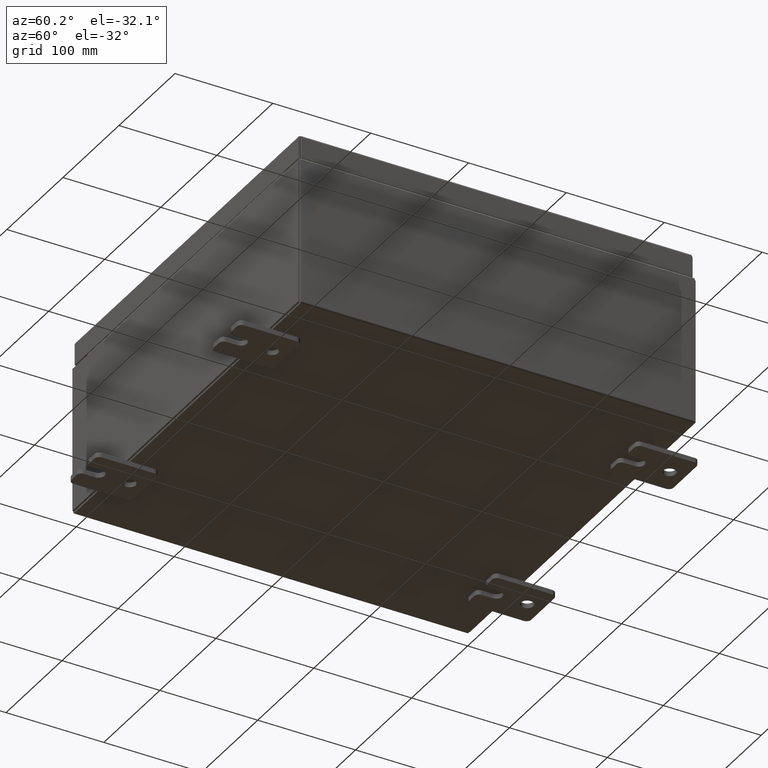
[diagram: clean part render]
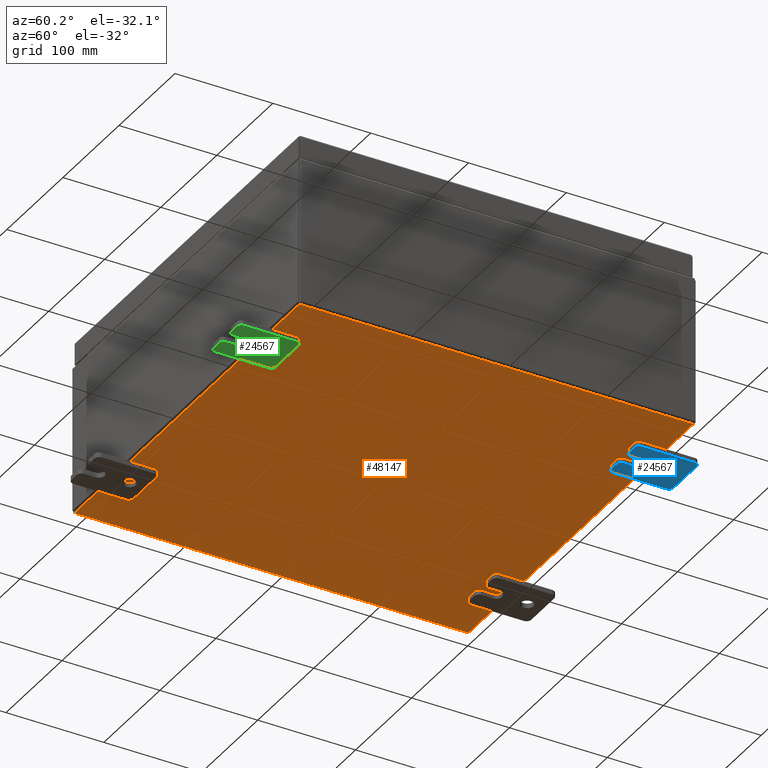
[diagram: same view with three faces highlighted in distinct colors, each labeled with its STEP entity id]
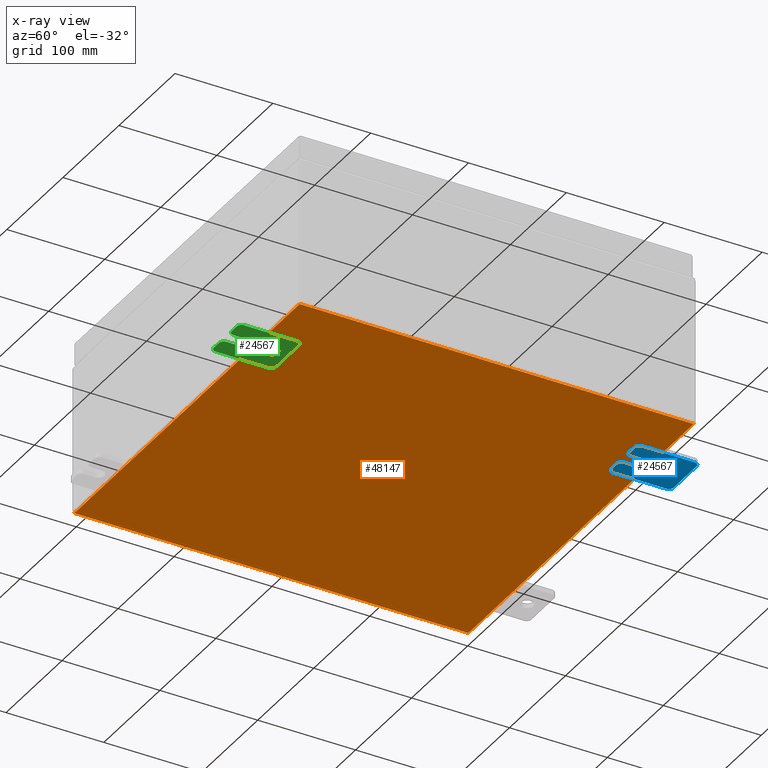
[diagram: x-ray of the same camera — body ghosted, the three highlighted faces saturated]
A machine part, auxiliary view with three faces highlighted in distinct colors.
The next image is the same camera in x-ray (body ghosted, the three faces saturated) — at least one of them is partly hidden behind the body in this view.
Their STEP definitions:

[orange] entity #48147 — the highlighted planar face has unit normal (0, 0, -1).
#1262 = CARTESIAN_POINT ( 'NONE',  ( -7.912300000000001000, -7.925300000000000900, -0.07469999999999994700 ) ) ;
#2845 = CARTESIAN_POINT ( 'NONE',  ( 7.912299999999998300, 7.925300000000000000, -0.07469999999999994700 ) ) ;
#3089 = PLANE ( 'NONE',  #54671 ) ;
#3186 = LINE ( 'NONE', #1262, #14315 ) ;
#5023 = CARTESIAN_POINT ( 'NONE',  ( -8.000000000000001800, -7.925300000000000900, -0.07470000000000000300 ) ) ;
#7933 = CARTESIAN_POINT ( 'NONE',  ( -7.912300000000001000, 7.925299999999998200, -0.07470000000000000300 ) ) ;
#13762 = ORIENTED_EDGE ( 'NONE', *, *, #33505, .T. ) ;
#14315 = VECTOR ( 'NONE', #58367, 39.37007874015748100 ) ;
#14983 = EDGE_CURVE ( 'NONE', #59762, #51099, #43965, .T. ) ;
#17233 = VERTEX_POINT ( 'NONE', #7933 ) ;
#17857 = CARTESIAN_POINT ( 'NONE',  ( 0.0000000000000000000, 0.0000000000000000000, -0.07470000000000000300 ) ) ;
#21466 = EDGE_LOOP ( 'NONE', ( #40939, #13762, #49142, #60429 ) ) ;
#22664 = DIRECTION ( 'NONE',  ( -1.000000000000000000, 0.0000000000000000000, -0.0000000000000000000 ) ) ;
#24903 = DIRECTION ( 'NONE',  ( -1.000000000000000000, -0.0000000000000000000, -0.0000000000000000000 ) ) ;
#26985 = CARTESIAN_POINT ( 'NONE',  ( 7.912299999999998300, 7.925300000000000000, -0.07469999999999994700 ) ) ;
#31209 = CARTESIAN_POINT ( 'NONE',  ( 7.912299999999998300, -7.925300000000000900, -0.07470000000000000300 ) ) ;
#32724 = VECTOR ( 'NONE', #38325, 39.37007874015748100 ) ;
#33016 = LINE ( 'NONE', #58267, #44216 ) ;
#33505 = EDGE_CURVE ( 'NONE', #42285, #17233, #3186, .T. ) ;
#38325 = DIRECTION ( 'NONE',  ( 1.000000000000000000, 0.0000000000000000000, 0.0000000000000000000 ) ) ;
#38512 = EDGE_CURVE ( 'NONE', #59762, #17233, #33016, .T. ) ;
#40924 = DIRECTION ( 'NONE',  ( -0.0000000000000000000, -1.000000000000000000, -0.0000000000000000000 ) ) ;
#40939 = ORIENTED_EDGE ( 'NONE', *, *, #43937, .F. ) ;
#41109 = FACE_OUTER_BOUND ( 'NONE', #21466, .T. ) ;
#42285 = VERTEX_POINT ( 'NONE', #59151 ) ;
#43937 = EDGE_CURVE ( 'NONE', #42285, #51099, #56646, .T. ) ;
#43965 = LINE ( 'NONE', #2845, #58168 ) ;
#44216 = VECTOR ( 'NONE', #24903, 39.37007874015748100 ) ;
#48147 = ADVANCED_FACE ( 'NONE', ( #41109 ), #3089, .T. ) ;
#49142 = ORIENTED_EDGE ( 'NONE', *, *, #38512, .F. ) ;
#51099 = VERTEX_POINT ( 'NONE', #31209 ) ;
#51181 = DIRECTION ( 'NONE',  ( 0.0000000000000000000, 0.0000000000000000000, -1.000000000000000000 ) ) ;
#54671 = AXIS2_PLACEMENT_3D ( 'NONE', #17857, #51181, #22664 ) ;
#56646 = LINE ( 'NONE', #5023, #32724 ) ;
#58168 = VECTOR ( 'NONE', #40924, 39.37007874015748100 ) ;
#58267 = CARTESIAN_POINT ( 'NONE',  ( -8.000000000000001800, 7.925299999999998200, -0.07470000000000000300 ) ) ;
#58367 = DIRECTION ( 'NONE',  ( -0.0000000000000000000, 1.000000000000000000, -0.0000000000000000000 ) ) ;
#59151 = CARTESIAN_POINT ( 'NONE',  ( -7.912300000000001000, -7.925300000000000900, -0.07469999999999994700 ) ) ;
#59762 = VERTEX_POINT ( 'NONE', #26985 ) ;
#60429 = ORIENTED_EDGE ( 'NONE', *, *, #14983, .T. ) ;

[blue] entity #24567 — the highlighted planar face has unit normal (0, 0, 1).
#671 = CARTESIAN_POINT ( 'NONE',  ( -0.1879999999999997800, -1.250000000000004700, -0.4400000000000002200 ) ) ;
#904 = EDGE_CURVE ( 'NONE', #1394, #14668, #11412, .T. ) ;
#1120 = CARTESIAN_POINT ( 'NONE',  ( -0.1879999999999997800, 1.059999999999993400, -1.000000000000010000 ) ) ;
#1394 = VERTEX_POINT ( 'NONE', #60674 ) ;
#1443 = VERTEX_POINT ( 'NONE', #8349 ) ;
#1460 = AXIS2_PLACEMENT_3D ( 'NONE', #52126, #23577, #56949 ) ;
#2194 = CARTESIAN_POINT ( 'NONE',  ( -0.1880000000000010000, 0.6249999999999992200, -7.703811342100550500E-020 ) ) ;
#2258 = EDGE_CURVE ( 'NONE', #4614, #37841, #14054, .T. ) ;
#2425 = DIRECTION ( 'NONE',  ( -1.000000000000000000, -0.0000000000000000000, 0.0000000000000000000 ) ) ;
#2502 = CARTESIAN_POINT ( 'NONE',  ( -0.1879999999999997800, -1.060000000000004500, -1.000000000000006400 ) ) ;
#2541 = VERTEX_POINT ( 'NONE', #21825 ) ;
#3601 = VERTEX_POINT ( 'NONE', #13780 ) ;
#4311 = PLANE ( 'NONE',  #8517 ) ;
#4614 = VERTEX_POINT ( 'NONE', #36760 ) ;
#4834 = ORIENTED_EDGE ( 'NONE', *, *, #14527, .T. ) ;
#4910 = VERTEX_POINT ( 'NONE', #43785 ) ;
#5939 = FACE_OUTER_BOUND ( 'NONE', #22501, .T. ) ;
#6155 = ORIENTED_EDGE ( 'NONE', *, *, #55666, .F. ) ;
#6272 = CIRCLE ( 'NONE', #14214, 0.2499999999999999200 ) ;
#6971 = DIRECTION ( 'NONE',  ( 0.0000000000000000000, 0.0000000000000000000, -1.000000000000000000 ) ) ;
#7249 = VERTEX_POINT ( 'NONE', #16137 ) ;
#7266 = EDGE_CURVE ( 'NONE', #7249, #37841, #30978, .T. ) ;
#7613 = CARTESIAN_POINT ( 'NONE',  ( -0.1879999999999997800, 1.249999999999994200, -1.000000000000010400 ) ) ;
#8106 = CARTESIAN_POINT ( 'NONE',  ( -0.1879999999999997800, -1.250000000000005600, -1.000000000000006200 ) ) ;
#8349 = CARTESIAN_POINT ( 'NONE',  ( -0.1880000000000001900, -0.6249999999999992200, -0.2499999999999998600 ) ) ;
#8517 = AXIS2_PLACEMENT_3D ( 'NONE', #42408, #13869, #47228 ) ;
#8899 = CIRCLE ( 'NONE', #1460, 0.1900000000000011100 ) ;
#8932 = FACE_BOUND ( 'NONE', #50460, .T. ) ;
#9102 = CARTESIAN_POINT ( 'NONE',  ( -0.1880000000000010000, 0.6249999999999992200, -7.703811342100550500E-020 ) ) ;
#10075 = VECTOR ( 'NONE', #23656, 39.37007874015748100 ) ;
#10155 = CARTESIAN_POINT ( 'NONE',  ( -0.1879999999999997800, -1.250000000000002200, 0.9999999999999992200 ) ) ;
#10243 = DIRECTION ( 'NONE',  ( -1.000000000000000000, 6.523827964459549700E-016, 5.163192708025532000E-017 ) ) ;
#11018 = AXIS2_PLACEMENT_3D ( 'NONE', #49264, #20726, #54080 ) ;
#11191 = CARTESIAN_POINT ( 'NONE',  ( -0.1880000000000001900, -0.6249999999999992200, -0.2499999999999993900 ) ) ;
#11412 = LINE ( 'NONE', #7613, #60684 ) ;
#11822 = ORIENTED_EDGE ( 'NONE', *, *, #47875, .F. ) ;
#13780 = CARTESIAN_POINT ( 'NONE',  ( -0.1880000000000001900, -0.6249999999999992200, 0.2500000000000005000 ) ) ;
#13869 = DIRECTION ( 'NONE',  ( 1.000000000000000000, 0.0000000000000000000, -0.0000000000000000000 ) ) ;
#13870 = DIRECTION ( 'NONE',  ( 0.0000000000000000000, 0.0000000000000000000, -1.000000000000000000 ) ) ;
#13934 = VECTOR ( 'NONE', #41408, 39.37007874015748100 ) ;
#14054 = LINE ( 'NONE', #24530, #37885 ) ;
#14214 = AXIS2_PLACEMENT_3D ( 'NONE', #2194, #35472, #6971 ) ;
#14527 = EDGE_CURVE ( 'NONE', #1394, #49612, #43241, .T. ) ;
#14608 = VERTEX_POINT ( 'NONE', #47651 ) ;
#14668 = VERTEX_POINT ( 'NONE', #53070 ) ;
#15061 = AXIS2_PLACEMENT_3D ( 'NONE', #30912, #2425, #35715 ) ;
#15063 = DIRECTION ( 'NONE',  ( -1.000000000000000000, -0.0000000000000000000, 0.0000000000000000000 ) ) ;
#15752 = VERTEX_POINT ( 'NONE', #40630 ) ;
#16137 = CARTESIAN_POINT ( 'NONE',  ( -0.1880000000000004700, -1.060000000000002100, 0.2500000000000005000 ) ) ;
#18950 = CIRCLE ( 'NONE', #11018, 0.1900000000000011100 ) ;
#19092 = VECTOR ( 'NONE', #21618, 39.37007874015748100 ) ;
#19210 = EDGE_CURVE ( 'NONE', #29624, #14608, #48367, .T. ) ;
#19549 = ORIENTED_EDGE ( 'NONE', *, *, #57407, .T. ) ;
#19755 = EDGE_CURVE ( 'NONE', #4910, #14668, #60327, .T. ) ;
#20271 = LINE ( 'NONE', #11191, #56839 ) ;
#20726 = DIRECTION ( 'NONE',  ( -1.000000000000000000, -0.0000000000000000000, 0.0000000000000000000 ) ) ;
#21335 = ORIENTED_EDGE ( 'NONE', *, *, #7266, .T. ) ;
#21618 = DIRECTION ( 'NONE',  ( 0.0000000000000000000, -1.000000000000000000, 1.639108796198558100E-015 ) ) ;
#21729 = CARTESIAN_POINT ( 'NONE',  ( -0.1879999999999997800, -1.250000000000003100, 0.4400000000000020000 ) ) ;
#21825 = CARTESIAN_POINT ( 'NONE',  ( -0.1880000000000010000, 0.6249999999999992200, -0.2499999999999999200 ) ) ;
#22501 = EDGE_LOOP ( 'NONE', ( #44467, #46468, #24273, #27655, #53970, #4834, #35557, #24432, #45554, #19549, #11822, #48246, #6155, #21335 ) ) ;
#22714 = EDGE_CURVE ( 'NONE', #4910, #33151, #31751, .T. ) ;
#23577 = DIRECTION ( 'NONE',  ( -1.000000000000000000, -0.0000000000000000000, 0.0000000000000000000 ) ) ;
#23656 = DIRECTION ( 'NONE',  ( 6.556435184794182400E-016, 1.000000000000000000, 0.0000000000000000000 ) ) ;
#24273 = ORIENTED_EDGE ( 'NONE', *, *, #22714, .F. ) ;
#24432 = ORIENTED_EDGE ( 'NONE', *, *, #19210, .T. ) ;
#24530 = CARTESIAN_POINT ( 'NONE',  ( -0.1879999999999997800, -1.250000000000002200, 0.9999999999999992200 ) ) ;
#24567 = ADVANCED_FACE ( 'NONE', ( #8932, #5939 ), #4311, .F. ) ;
#25135 = LINE ( 'NONE', #8106, #13934 ) ;
#25934 = DIRECTION ( 'NONE',  ( -1.000000000000000000, -0.0000000000000000000, 0.0000000000000000000 ) ) ;
#26291 = CIRCLE ( 'NONE', #30216, 0.2499999999999999200 ) ;
#27655 = ORIENTED_EDGE ( 'NONE', *, *, #19755, .T. ) ;
#27767 = EDGE_CURVE ( 'NONE', #29624, #49612, #25135, .T. ) ;
#28262 = CARTESIAN_POINT ( 'NONE',  ( -0.1879999999999997800, 1.059999999999993600, -0.8100000000000089400 ) ) ;
#28756 = EDGE_CURVE ( 'NONE', #3601, #1443, #40710, .T. ) ;
#29624 = VERTEX_POINT ( 'NONE', #2502 ) ;
#30133 = DIRECTION ( 'NONE',  ( -6.556435184794182400E-016, -1.000000000000000000, -1.639108796198545600E-016 ) ) ;
#30216 = AXIS2_PLACEMENT_3D ( 'NONE', #9102, #42409, #13870 ) ;
#30375 = VERTEX_POINT ( 'NONE', #36416 ) ;
#30767 = ORIENTED_EDGE ( 'NONE', *, *, #57465, .T. ) ;
#30912 = CARTESIAN_POINT ( 'NONE',  ( -0.1879999999999997800, 1.059999999999996300, 0.8099999999999938400 ) ) ;
#30978 = CIRCLE ( 'NONE', #32232, 0.1900000000000011400 ) ;
#31751 = LINE ( 'NONE', #59766, #19092 ) ;
#31784 = EDGE_CURVE ( 'NONE', #52197, #14608, #60714, .T. ) ;
#32232 = AXIS2_PLACEMENT_3D ( 'NONE', #54504, #25934, #59323 ) ;
#33043 = DIRECTION ( 'NONE',  ( 0.0000000000000000000, 0.0000000000000000000, -1.000000000000000000 ) ) ;
#33151 = VERTEX_POINT ( 'NONE', #41887 ) ;
#33210 = CARTESIAN_POINT ( 'NONE',  ( -0.1880000000000005800, -1.250000000000003800, 0.2500000000000005000 ) ) ;
#35472 = DIRECTION ( 'NONE',  ( 1.000000000000000000, -0.0000000000000000000, -5.163192708025532000E-017 ) ) ;
#35557 = ORIENTED_EDGE ( 'NONE', *, *, #27767, .F. ) ;
#35715 = DIRECTION ( 'NONE',  ( 0.0000000000000000000, 0.0000000000000000000, -1.000000000000000000 ) ) ;
#36136 = DIRECTION ( 'NONE',  ( 0.0000000000000000000, 1.639108796198553600E-015, 1.000000000000000000 ) ) ;
#36416 = CARTESIAN_POINT ( 'NONE',  ( -0.1880000000000010000, 0.6249999999999992200, 0.2499999999999999200 ) ) ;
#36760 = CARTESIAN_POINT ( 'NONE',  ( -0.1879999999999997800, -1.250000000000002400, 0.8099999999999980500 ) ) ;
#36933 = LINE ( 'NONE', #33210, #10075 ) ;
#37841 = VERTEX_POINT ( 'NONE', #21729 ) ;
#37885 = VECTOR ( 'NONE', #48478, 39.37007874015748100 ) ;
#38773 = CARTESIAN_POINT ( 'NONE',  ( -0.1880000000000001900, -0.6249999999999992200, 6.829619984160658000E-017 ) ) ;
#39319 = EDGE_CURVE ( 'NONE', #2541, #30375, #26291, .T. ) ;
#40630 = CARTESIAN_POINT ( 'NONE',  ( -0.1880000000000004700, -1.060000000000003400, -0.2499999999999994400 ) ) ;
#40710 = CIRCLE ( 'NONE', #55013, 0.2499999999999999200 ) ;
#41408 = DIRECTION ( 'NONE',  ( 0.0000000000000000000, 1.000000000000000000, -1.639108796198558100E-015 ) ) ;
#41620 = AXIS2_PLACEMENT_3D ( 'NONE', #28262, #61655, #33043 ) ;
#41887 = CARTESIAN_POINT ( 'NONE',  ( -0.1879999999999997800, -1.060000000000001200, 0.9999999999999988900 ) ) ;
#42408 = CARTESIAN_POINT ( 'NONE',  ( -0.1879999999999997800, 0.0000000000000000000, 0.0000000000000000000 ) ) ;
#42409 = DIRECTION ( 'NONE',  ( 1.000000000000000000, -0.0000000000000000000, -5.163192708025532000E-017 ) ) ;
#43241 = CIRCLE ( 'NONE', #41620, 0.1900000000000011100 ) ;
#43494 = DIRECTION ( 'NONE',  ( 0.0000000000000000000, -1.639108796198553600E-015, -1.000000000000000000 ) ) ;
#43589 = DIRECTION ( 'NONE',  ( -6.829619984160660000E-016, -1.000000000000000000, 0.0000000000000000000 ) ) ;
#43610 = CARTESIAN_POINT ( 'NONE',  ( -0.1879999999999997800, -1.060000000000004100, -0.8100000000000050500 ) ) ;
#43785 = CARTESIAN_POINT ( 'NONE',  ( -0.1879999999999997800, 1.059999999999996500, 0.9999999999999953400 ) ) ;
#43836 = EDGE_CURVE ( 'NONE', #4614, #33151, #8899, .T. ) ;
#44467 = ORIENTED_EDGE ( 'NONE', *, *, #2258, .F. ) ;
#45554 = ORIENTED_EDGE ( 'NONE', *, *, #31784, .F. ) ;
#46468 = ORIENTED_EDGE ( 'NONE', *, *, #43836, .T. ) ;
#46490 = VECTOR ( 'NONE', #43494, 39.37007874015748100 ) ;
#47228 = DIRECTION ( 'NONE',  ( -0.0000000000000000000, 0.0000000000000000000, -1.000000000000000000 ) ) ;
#47651 = CARTESIAN_POINT ( 'NONE',  ( -0.1879999999999997800, -1.250000000000005300, -0.8100000000000047200 ) ) ;
#47875 = EDGE_CURVE ( 'NONE', #1443, #15752, #20271, .T. ) ;
#48246 = ORIENTED_EDGE ( 'NONE', *, *, #28756, .F. ) ;
#48367 = CIRCLE ( 'NONE', #61387, 0.1900000000000011100 ) ;
#48413 = DIRECTION ( 'NONE',  ( 0.0000000000000000000, 0.0000000000000000000, -1.000000000000000000 ) ) ;
#48478 = DIRECTION ( 'NONE',  ( 0.0000000000000000000, -1.639108796198553600E-015, -1.000000000000000000 ) ) ;
#49264 = CARTESIAN_POINT ( 'NONE',  ( -0.1879999999999997800, -1.060000000000003400, -0.4400000000000005000 ) ) ;
#49612 = VERTEX_POINT ( 'NONE', #1120 ) ;
#50460 = EDGE_LOOP ( 'NONE', ( #60247, #30767 ) ) ;
#52126 = CARTESIAN_POINT ( 'NONE',  ( -0.1879999999999997800, -1.060000000000001600, 0.8099999999999978300 ) ) ;
#52197 = VERTEX_POINT ( 'NONE', #671 ) ;
#53070 = CARTESIAN_POINT ( 'NONE',  ( -0.1879999999999997800, 1.249999999999997300, 0.8099999999999935000 ) ) ;
#53970 = ORIENTED_EDGE ( 'NONE', *, *, #904, .F. ) ;
#54080 = DIRECTION ( 'NONE',  ( 0.0000000000000000000, 0.0000000000000000000, -1.000000000000000000 ) ) ;
#54504 = CARTESIAN_POINT ( 'NONE',  ( -0.1879999999999997800, -1.060000000000002100, 0.4400000000000016700 ) ) ;
#55013 = AXIS2_PLACEMENT_3D ( 'NONE', #38773, #10243, #43589 ) ;
#55666 = EDGE_CURVE ( 'NONE', #7249, #3601, #36933, .T. ) ;
#56839 = VECTOR ( 'NONE', #30133, 39.37007874015748100 ) ;
#56949 = DIRECTION ( 'NONE',  ( 0.0000000000000000000, 7.189073667537492800E-016, -1.000000000000000000 ) ) ;
#57407 = EDGE_CURVE ( 'NONE', #52197, #15752, #18950, .T. ) ;
#57465 = EDGE_CURVE ( 'NONE', #30375, #2541, #6272, .T. ) ;
#59323 = DIRECTION ( 'NONE',  ( 0.0000000000000000000, 0.0000000000000000000, -1.000000000000000000 ) ) ;
#59766 = CARTESIAN_POINT ( 'NONE',  ( -0.1879999999999997800, 1.249999999999997600, 0.9999999999999951200 ) ) ;
#60247 = ORIENTED_EDGE ( 'NONE', *, *, #39319, .T. ) ;
#60327 = CIRCLE ( 'NONE', #15061, 0.1900000000000011100 ) ;
#60674 = CARTESIAN_POINT ( 'NONE',  ( -0.1879999999999997800, 1.249999999999994700, -0.8100000000000092700 ) ) ;
#60684 = VECTOR ( 'NONE', #36136, 39.37007874015748100 ) ;
#60714 = LINE ( 'NONE', #10155, #46490 ) ;
#61387 = AXIS2_PLACEMENT_3D ( 'NONE', #43610, #15063, #48413 ) ;
#61655 = DIRECTION ( 'NONE',  ( -1.000000000000000000, -0.0000000000000000000, 0.0000000000000000000 ) ) ;

[green] entity #24567 — the highlighted planar face has unit normal (0, 0, 1).
#671 = CARTESIAN_POINT ( 'NONE',  ( -0.1879999999999997800, -1.250000000000004700, -0.4400000000000002200 ) ) ;
#904 = EDGE_CURVE ( 'NONE', #1394, #14668, #11412, .T. ) ;
#1120 = CARTESIAN_POINT ( 'NONE',  ( -0.1879999999999997800, 1.059999999999993400, -1.000000000000010000 ) ) ;
#1394 = VERTEX_POINT ( 'NONE', #60674 ) ;
#1443 = VERTEX_POINT ( 'NONE', #8349 ) ;
#1460 = AXIS2_PLACEMENT_3D ( 'NONE', #52126, #23577, #56949 ) ;
#2194 = CARTESIAN_POINT ( 'NONE',  ( -0.1880000000000010000, 0.6249999999999992200, -7.703811342100550500E-020 ) ) ;
#2258 = EDGE_CURVE ( 'NONE', #4614, #37841, #14054, .T. ) ;
#2425 = DIRECTION ( 'NONE',  ( -1.000000000000000000, -0.0000000000000000000, 0.0000000000000000000 ) ) ;
#2502 = CARTESIAN_POINT ( 'NONE',  ( -0.1879999999999997800, -1.060000000000004500, -1.000000000000006400 ) ) ;
#2541 = VERTEX_POINT ( 'NONE', #21825 ) ;
#3601 = VERTEX_POINT ( 'NONE', #13780 ) ;
#4311 = PLANE ( 'NONE',  #8517 ) ;
#4614 = VERTEX_POINT ( 'NONE', #36760 ) ;
#4834 = ORIENTED_EDGE ( 'NONE', *, *, #14527, .T. ) ;
#4910 = VERTEX_POINT ( 'NONE', #43785 ) ;
#5939 = FACE_OUTER_BOUND ( 'NONE', #22501, .T. ) ;
#6155 = ORIENTED_EDGE ( 'NONE', *, *, #55666, .F. ) ;
#6272 = CIRCLE ( 'NONE', #14214, 0.2499999999999999200 ) ;
#6971 = DIRECTION ( 'NONE',  ( 0.0000000000000000000, 0.0000000000000000000, -1.000000000000000000 ) ) ;
#7249 = VERTEX_POINT ( 'NONE', #16137 ) ;
#7266 = EDGE_CURVE ( 'NONE', #7249, #37841, #30978, .T. ) ;
#7613 = CARTESIAN_POINT ( 'NONE',  ( -0.1879999999999997800, 1.249999999999994200, -1.000000000000010400 ) ) ;
#8106 = CARTESIAN_POINT ( 'NONE',  ( -0.1879999999999997800, -1.250000000000005600, -1.000000000000006200 ) ) ;
#8349 = CARTESIAN_POINT ( 'NONE',  ( -0.1880000000000001900, -0.6249999999999992200, -0.2499999999999998600 ) ) ;
#8517 = AXIS2_PLACEMENT_3D ( 'NONE', #42408, #13869, #47228 ) ;
#8899 = CIRCLE ( 'NONE', #1460, 0.1900000000000011100 ) ;
#8932 = FACE_BOUND ( 'NONE', #50460, .T. ) ;
#9102 = CARTESIAN_POINT ( 'NONE',  ( -0.1880000000000010000, 0.6249999999999992200, -7.703811342100550500E-020 ) ) ;
#10075 = VECTOR ( 'NONE', #23656, 39.37007874015748100 ) ;
#10155 = CARTESIAN_POINT ( 'NONE',  ( -0.1879999999999997800, -1.250000000000002200, 0.9999999999999992200 ) ) ;
#10243 = DIRECTION ( 'NONE',  ( -1.000000000000000000, 6.523827964459549700E-016, 5.163192708025532000E-017 ) ) ;
#11018 = AXIS2_PLACEMENT_3D ( 'NONE', #49264, #20726, #54080 ) ;
#11191 = CARTESIAN_POINT ( 'NONE',  ( -0.1880000000000001900, -0.6249999999999992200, -0.2499999999999993900 ) ) ;
#11412 = LINE ( 'NONE', #7613, #60684 ) ;
#11822 = ORIENTED_EDGE ( 'NONE', *, *, #47875, .F. ) ;
#13780 = CARTESIAN_POINT ( 'NONE',  ( -0.1880000000000001900, -0.6249999999999992200, 0.2500000000000005000 ) ) ;
#13869 = DIRECTION ( 'NONE',  ( 1.000000000000000000, 0.0000000000000000000, -0.0000000000000000000 ) ) ;
#13870 = DIRECTION ( 'NONE',  ( 0.0000000000000000000, 0.0000000000000000000, -1.000000000000000000 ) ) ;
#13934 = VECTOR ( 'NONE', #41408, 39.37007874015748100 ) ;
#14054 = LINE ( 'NONE', #24530, #37885 ) ;
#14214 = AXIS2_PLACEMENT_3D ( 'NONE', #2194, #35472, #6971 ) ;
#14527 = EDGE_CURVE ( 'NONE', #1394, #49612, #43241, .T. ) ;
#14608 = VERTEX_POINT ( 'NONE', #47651 ) ;
#14668 = VERTEX_POINT ( 'NONE', #53070 ) ;
#15061 = AXIS2_PLACEMENT_3D ( 'NONE', #30912, #2425, #35715 ) ;
#15063 = DIRECTION ( 'NONE',  ( -1.000000000000000000, -0.0000000000000000000, 0.0000000000000000000 ) ) ;
#15752 = VERTEX_POINT ( 'NONE', #40630 ) ;
#16137 = CARTESIAN_POINT ( 'NONE',  ( -0.1880000000000004700, -1.060000000000002100, 0.2500000000000005000 ) ) ;
#18950 = CIRCLE ( 'NONE', #11018, 0.1900000000000011100 ) ;
#19092 = VECTOR ( 'NONE', #21618, 39.37007874015748100 ) ;
#19210 = EDGE_CURVE ( 'NONE', #29624, #14608, #48367, .T. ) ;
#19549 = ORIENTED_EDGE ( 'NONE', *, *, #57407, .T. ) ;
#19755 = EDGE_CURVE ( 'NONE', #4910, #14668, #60327, .T. ) ;
#20271 = LINE ( 'NONE', #11191, #56839 ) ;
#20726 = DIRECTION ( 'NONE',  ( -1.000000000000000000, -0.0000000000000000000, 0.0000000000000000000 ) ) ;
#21335 = ORIENTED_EDGE ( 'NONE', *, *, #7266, .T. ) ;
#21618 = DIRECTION ( 'NONE',  ( 0.0000000000000000000, -1.000000000000000000, 1.639108796198558100E-015 ) ) ;
#21729 = CARTESIAN_POINT ( 'NONE',  ( -0.1879999999999997800, -1.250000000000003100, 0.4400000000000020000 ) ) ;
#21825 = CARTESIAN_POINT ( 'NONE',  ( -0.1880000000000010000, 0.6249999999999992200, -0.2499999999999999200 ) ) ;
#22501 = EDGE_LOOP ( 'NONE', ( #44467, #46468, #24273, #27655, #53970, #4834, #35557, #24432, #45554, #19549, #11822, #48246, #6155, #21335 ) ) ;
#22714 = EDGE_CURVE ( 'NONE', #4910, #33151, #31751, .T. ) ;
#23577 = DIRECTION ( 'NONE',  ( -1.000000000000000000, -0.0000000000000000000, 0.0000000000000000000 ) ) ;
#23656 = DIRECTION ( 'NONE',  ( 6.556435184794182400E-016, 1.000000000000000000, 0.0000000000000000000 ) ) ;
#24273 = ORIENTED_EDGE ( 'NONE', *, *, #22714, .F. ) ;
#24432 = ORIENTED_EDGE ( 'NONE', *, *, #19210, .T. ) ;
#24530 = CARTESIAN_POINT ( 'NONE',  ( -0.1879999999999997800, -1.250000000000002200, 0.9999999999999992200 ) ) ;
#24567 = ADVANCED_FACE ( 'NONE', ( #8932, #5939 ), #4311, .F. ) ;
#25135 = LINE ( 'NONE', #8106, #13934 ) ;
#25934 = DIRECTION ( 'NONE',  ( -1.000000000000000000, -0.0000000000000000000, 0.0000000000000000000 ) ) ;
#26291 = CIRCLE ( 'NONE', #30216, 0.2499999999999999200 ) ;
#27655 = ORIENTED_EDGE ( 'NONE', *, *, #19755, .T. ) ;
#27767 = EDGE_CURVE ( 'NONE', #29624, #49612, #25135, .T. ) ;
#28262 = CARTESIAN_POINT ( 'NONE',  ( -0.1879999999999997800, 1.059999999999993600, -0.8100000000000089400 ) ) ;
#28756 = EDGE_CURVE ( 'NONE', #3601, #1443, #40710, .T. ) ;
#29624 = VERTEX_POINT ( 'NONE', #2502 ) ;
#30133 = DIRECTION ( 'NONE',  ( -6.556435184794182400E-016, -1.000000000000000000, -1.639108796198545600E-016 ) ) ;
#30216 = AXIS2_PLACEMENT_3D ( 'NONE', #9102, #42409, #13870 ) ;
#30375 = VERTEX_POINT ( 'NONE', #36416 ) ;
#30767 = ORIENTED_EDGE ( 'NONE', *, *, #57465, .T. ) ;
#30912 = CARTESIAN_POINT ( 'NONE',  ( -0.1879999999999997800, 1.059999999999996300, 0.8099999999999938400 ) ) ;
#30978 = CIRCLE ( 'NONE', #32232, 0.1900000000000011400 ) ;
#31751 = LINE ( 'NONE', #59766, #19092 ) ;
#31784 = EDGE_CURVE ( 'NONE', #52197, #14608, #60714, .T. ) ;
#32232 = AXIS2_PLACEMENT_3D ( 'NONE', #54504, #25934, #59323 ) ;
#33043 = DIRECTION ( 'NONE',  ( 0.0000000000000000000, 0.0000000000000000000, -1.000000000000000000 ) ) ;
#33151 = VERTEX_POINT ( 'NONE', #41887 ) ;
#33210 = CARTESIAN_POINT ( 'NONE',  ( -0.1880000000000005800, -1.250000000000003800, 0.2500000000000005000 ) ) ;
#35472 = DIRECTION ( 'NONE',  ( 1.000000000000000000, -0.0000000000000000000, -5.163192708025532000E-017 ) ) ;
#35557 = ORIENTED_EDGE ( 'NONE', *, *, #27767, .F. ) ;
#35715 = DIRECTION ( 'NONE',  ( 0.0000000000000000000, 0.0000000000000000000, -1.000000000000000000 ) ) ;
#36136 = DIRECTION ( 'NONE',  ( 0.0000000000000000000, 1.639108796198553600E-015, 1.000000000000000000 ) ) ;
#36416 = CARTESIAN_POINT ( 'NONE',  ( -0.1880000000000010000, 0.6249999999999992200, 0.2499999999999999200 ) ) ;
#36760 = CARTESIAN_POINT ( 'NONE',  ( -0.1879999999999997800, -1.250000000000002400, 0.8099999999999980500 ) ) ;
#36933 = LINE ( 'NONE', #33210, #10075 ) ;
#37841 = VERTEX_POINT ( 'NONE', #21729 ) ;
#37885 = VECTOR ( 'NONE', #48478, 39.37007874015748100 ) ;
#38773 = CARTESIAN_POINT ( 'NONE',  ( -0.1880000000000001900, -0.6249999999999992200, 6.829619984160658000E-017 ) ) ;
#39319 = EDGE_CURVE ( 'NONE', #2541, #30375, #26291, .T. ) ;
#40630 = CARTESIAN_POINT ( 'NONE',  ( -0.1880000000000004700, -1.060000000000003400, -0.2499999999999994400 ) ) ;
#40710 = CIRCLE ( 'NONE', #55013, 0.2499999999999999200 ) ;
#41408 = DIRECTION ( 'NONE',  ( 0.0000000000000000000, 1.000000000000000000, -1.639108796198558100E-015 ) ) ;
#41620 = AXIS2_PLACEMENT_3D ( 'NONE', #28262, #61655, #33043 ) ;
#41887 = CARTESIAN_POINT ( 'NONE',  ( -0.1879999999999997800, -1.060000000000001200, 0.9999999999999988900 ) ) ;
#42408 = CARTESIAN_POINT ( 'NONE',  ( -0.1879999999999997800, 0.0000000000000000000, 0.0000000000000000000 ) ) ;
#42409 = DIRECTION ( 'NONE',  ( 1.000000000000000000, -0.0000000000000000000, -5.163192708025532000E-017 ) ) ;
#43241 = CIRCLE ( 'NONE', #41620, 0.1900000000000011100 ) ;
#43494 = DIRECTION ( 'NONE',  ( 0.0000000000000000000, -1.639108796198553600E-015, -1.000000000000000000 ) ) ;
#43589 = DIRECTION ( 'NONE',  ( -6.829619984160660000E-016, -1.000000000000000000, 0.0000000000000000000 ) ) ;
#43610 = CARTESIAN_POINT ( 'NONE',  ( -0.1879999999999997800, -1.060000000000004100, -0.8100000000000050500 ) ) ;
#43785 = CARTESIAN_POINT ( 'NONE',  ( -0.1879999999999997800, 1.059999999999996500, 0.9999999999999953400 ) ) ;
#43836 = EDGE_CURVE ( 'NONE', #4614, #33151, #8899, .T. ) ;
#44467 = ORIENTED_EDGE ( 'NONE', *, *, #2258, .F. ) ;
#45554 = ORIENTED_EDGE ( 'NONE', *, *, #31784, .F. ) ;
#46468 = ORIENTED_EDGE ( 'NONE', *, *, #43836, .T. ) ;
#46490 = VECTOR ( 'NONE', #43494, 39.37007874015748100 ) ;
#47228 = DIRECTION ( 'NONE',  ( -0.0000000000000000000, 0.0000000000000000000, -1.000000000000000000 ) ) ;
#47651 = CARTESIAN_POINT ( 'NONE',  ( -0.1879999999999997800, -1.250000000000005300, -0.8100000000000047200 ) ) ;
#47875 = EDGE_CURVE ( 'NONE', #1443, #15752, #20271, .T. ) ;
#48246 = ORIENTED_EDGE ( 'NONE', *, *, #28756, .F. ) ;
#48367 = CIRCLE ( 'NONE', #61387, 0.1900000000000011100 ) ;
#48413 = DIRECTION ( 'NONE',  ( 0.0000000000000000000, 0.0000000000000000000, -1.000000000000000000 ) ) ;
#48478 = DIRECTION ( 'NONE',  ( 0.0000000000000000000, -1.639108796198553600E-015, -1.000000000000000000 ) ) ;
#49264 = CARTESIAN_POINT ( 'NONE',  ( -0.1879999999999997800, -1.060000000000003400, -0.4400000000000005000 ) ) ;
#49612 = VERTEX_POINT ( 'NONE', #1120 ) ;
#50460 = EDGE_LOOP ( 'NONE', ( #60247, #30767 ) ) ;
#52126 = CARTESIAN_POINT ( 'NONE',  ( -0.1879999999999997800, -1.060000000000001600, 0.8099999999999978300 ) ) ;
#52197 = VERTEX_POINT ( 'NONE', #671 ) ;
#53070 = CARTESIAN_POINT ( 'NONE',  ( -0.1879999999999997800, 1.249999999999997300, 0.8099999999999935000 ) ) ;
#53970 = ORIENTED_EDGE ( 'NONE', *, *, #904, .F. ) ;
#54080 = DIRECTION ( 'NONE',  ( 0.0000000000000000000, 0.0000000000000000000, -1.000000000000000000 ) ) ;
#54504 = CARTESIAN_POINT ( 'NONE',  ( -0.1879999999999997800, -1.060000000000002100, 0.4400000000000016700 ) ) ;
#55013 = AXIS2_PLACEMENT_3D ( 'NONE', #38773, #10243, #43589 ) ;
#55666 = EDGE_CURVE ( 'NONE', #7249, #3601, #36933, .T. ) ;
#56839 = VECTOR ( 'NONE', #30133, 39.37007874015748100 ) ;
#56949 = DIRECTION ( 'NONE',  ( 0.0000000000000000000, 7.189073667537492800E-016, -1.000000000000000000 ) ) ;
#57407 = EDGE_CURVE ( 'NONE', #52197, #15752, #18950, .T. ) ;
#57465 = EDGE_CURVE ( 'NONE', #30375, #2541, #6272, .T. ) ;
#59323 = DIRECTION ( 'NONE',  ( 0.0000000000000000000, 0.0000000000000000000, -1.000000000000000000 ) ) ;
#59766 = CARTESIAN_POINT ( 'NONE',  ( -0.1879999999999997800, 1.249999999999997600, 0.9999999999999951200 ) ) ;
#60247 = ORIENTED_EDGE ( 'NONE', *, *, #39319, .T. ) ;
#60327 = CIRCLE ( 'NONE', #15061, 0.1900000000000011100 ) ;
#60674 = CARTESIAN_POINT ( 'NONE',  ( -0.1879999999999997800, 1.249999999999994700, -0.8100000000000092700 ) ) ;
#60684 = VECTOR ( 'NONE', #36136, 39.37007874015748100 ) ;
#60714 = LINE ( 'NONE', #10155, #46490 ) ;
#61387 = AXIS2_PLACEMENT_3D ( 'NONE', #43610, #15063, #48413 ) ;
#61655 = DIRECTION ( 'NONE',  ( -1.000000000000000000, -0.0000000000000000000, 0.0000000000000000000 ) ) ;